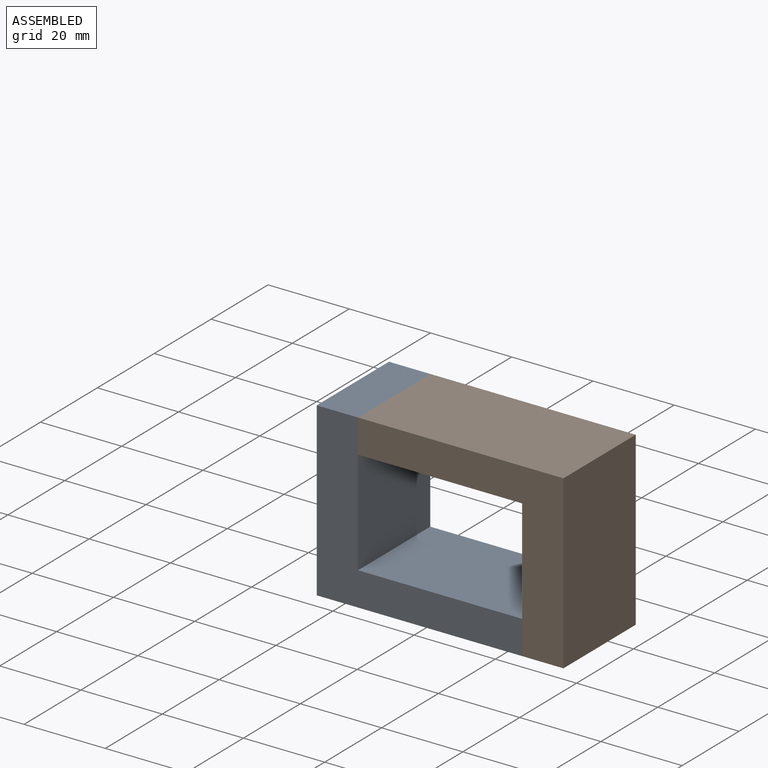
[diagram: assembled view]
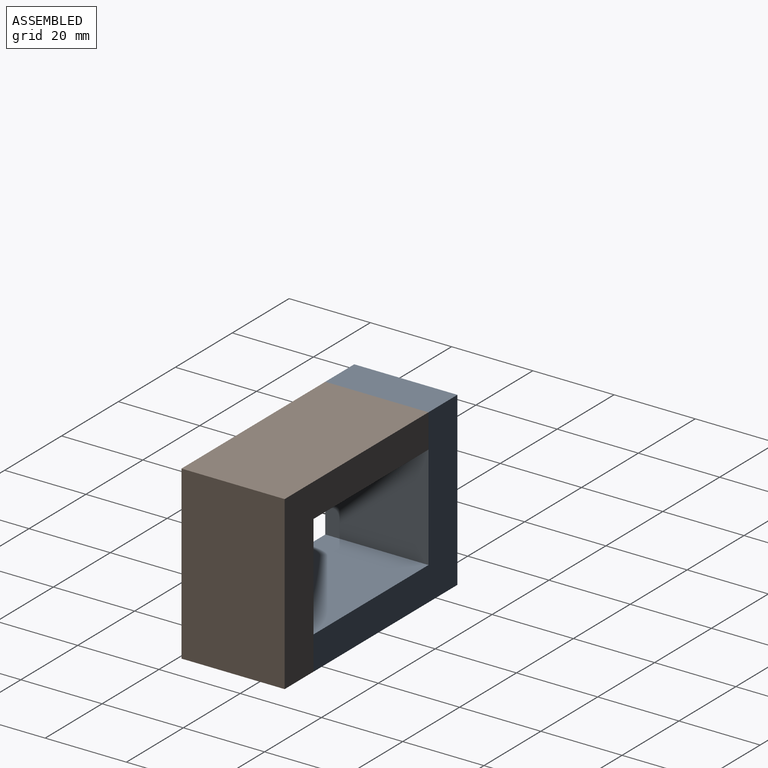
[diagram: assembled view, second angle]
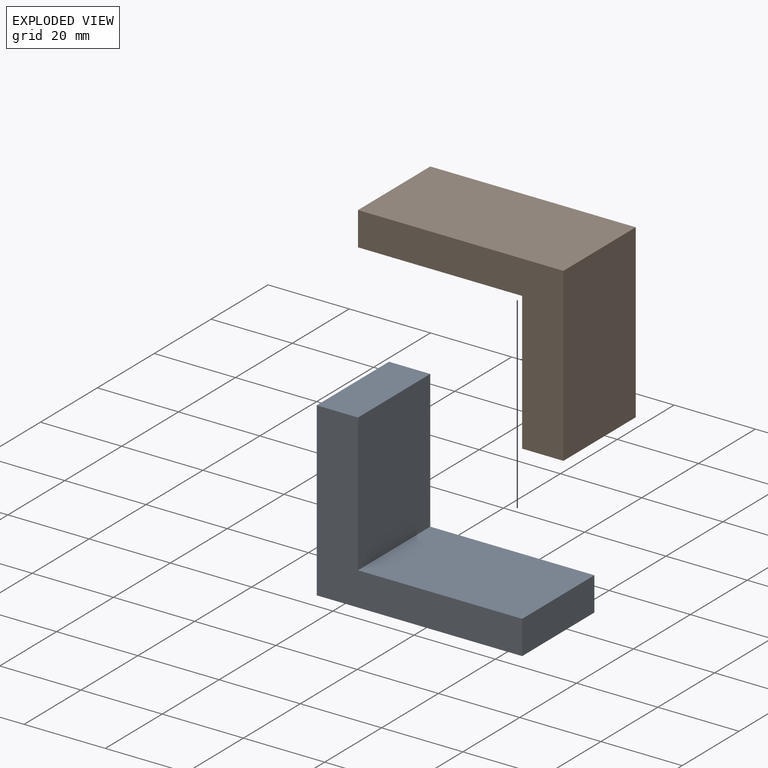
[diagram: exploded view]
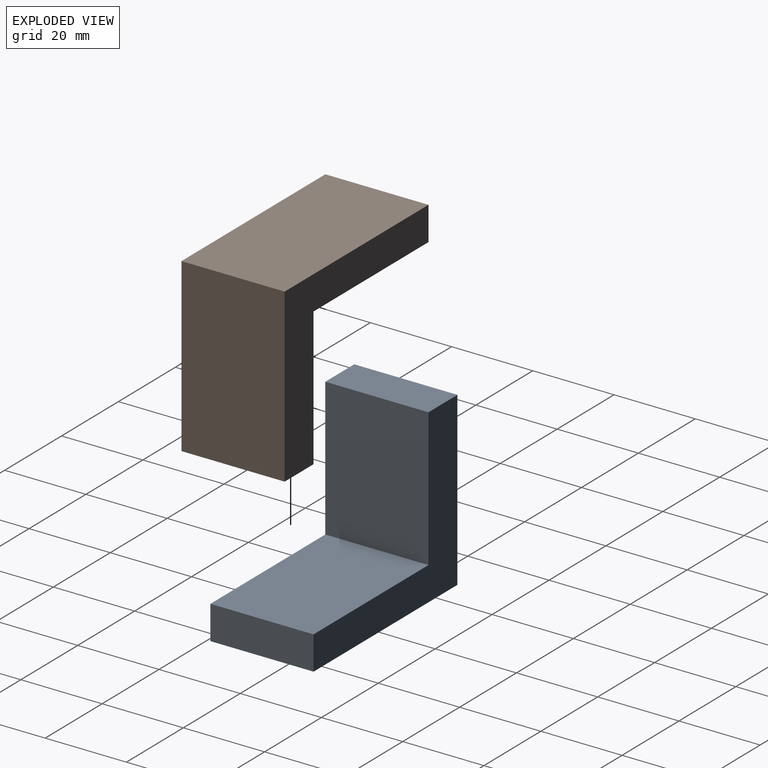
[diagram: exploded view, second angle]
ASSEMBLY  parts=2 mates=3
PART A: 8 faces, bbox 50.6x25.4x42.3 mm
  f0: plane 25.4x8.3mm, normal (1,0,0), area 210.7mm2, adj f1,f5,f6,f7
  f1: plane 40.41x25.4mm, normal (0,0,1), area 1026.3mm2, adj f0,f2,f6,f7
  f2: plane 33.98x25.4mm, normal (1,0,0), area 863.2mm2, adj f1,f3,f6,f7
  f3: plane 25.4x10.17mm, normal (0,0,1), area 258.3mm2, adj f2,f4,f6,f7
  f4: plane 42.28x25.4mm, normal (-1,0,0), area 1073.9mm2, adj f3,f5,f6,f7
  f5: plane 50.58x25.4mm, normal (0,0,-1), area 1284.6mm2, adj f0,f4,f6,f7
  f6: plane 50.58x42.28mm, normal (0,-1,0), area 765.1mm2, adj f0,f1,f2,f3,f4,f5
  f7: plane 50.58x42.28mm, normal (0,1,0), area 765.1mm2, adj f0,f1,f2,f3,f4,f5
PART B: same geometry as A
PLACE A t=(-5.51,27.61,-15.05)mm fixed
PLACE B rot(axis=(0,1,0),180deg) t=(55.23,27.61,27.22)mm
MATE planar A.f3 <-> B.f5  axis (0,0,1) through (-0.43,14.91,27.22)mm
MATE planar B.f6 <-> A.f6  axis (0,-1,0) through (39.07,2.21,13.53)mm
MATE planar B.f0 <-> A.f2  axis (-1,0,0) through (4.66,2.21,23.08)mm
